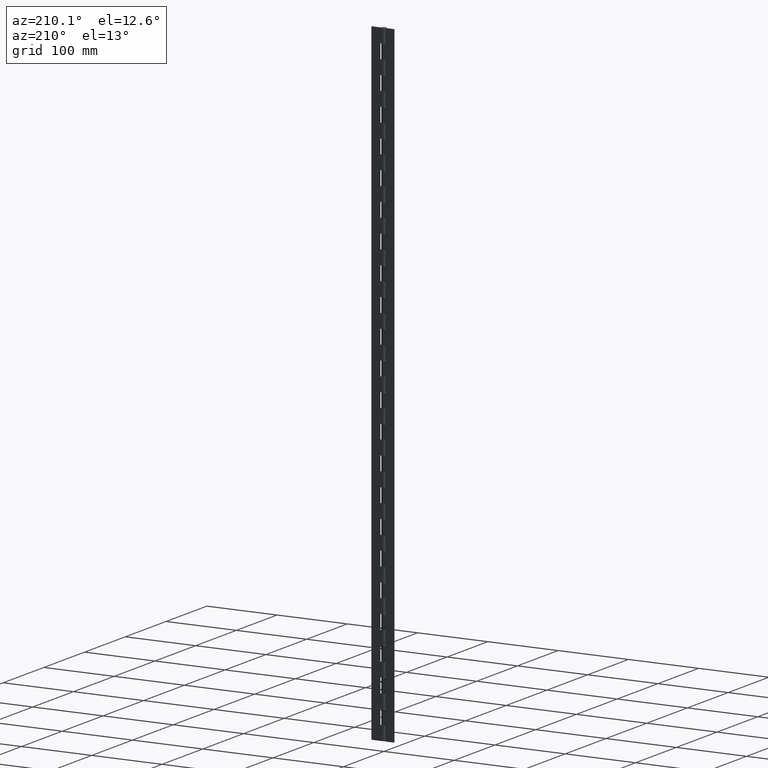
[diagram: clean part render]
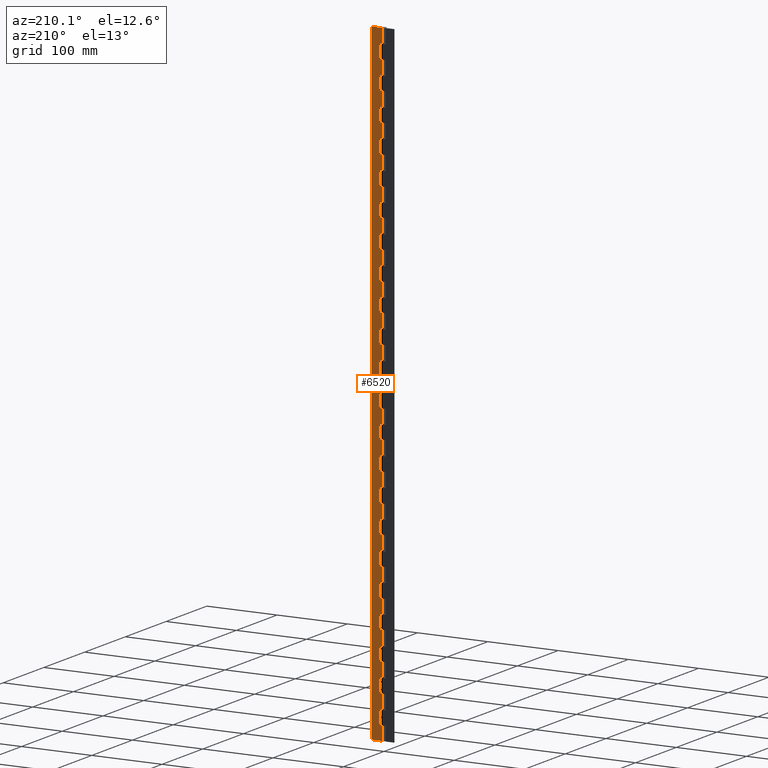
[diagram: same view with one face highlighted and labeled with its STEP entity id]
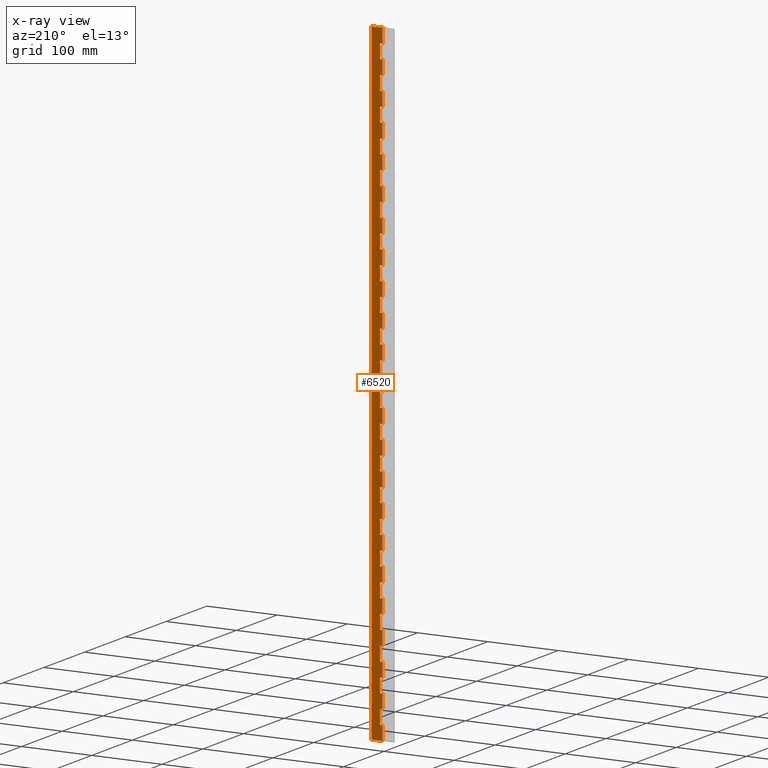
[diagram: x-ray of the same camera — body ghosted, the highlighted face saturated]
A machine part, auxiliary view. The second image highlights one B-rep face of the part: STEP entity #6520.
The next image is the same camera in x-ray: the body ghosted, the highlighted face saturated — about 0% of this face is hidden behind the body in this view.
In plain terms, the highlighted face is a freeform B-spline surface patch.
Its self-contained STEP definition (entity closure, byte-faithful):
#330=CARTESIAN_POINT('',(0.0,3.250000000000000,40.000021999999952));
#331=VERTEX_POINT('',#330);
#351=CARTESIAN_POINT('',(4.0,3.250000000000000,40.000021999999952));
#352=VERTEX_POINT('',#351);
#353=CARTESIAN_POINT('',(4.0,3.250000000000000,40.000021999999952));
#354=CARTESIAN_POINT('',(0.0,3.250000000000000,40.000021999999952));
#355=QUASI_UNIFORM_CURVE('',1,(#353,#354),.UNSPECIFIED.,.F.,.U.);
#356=EDGE_CURVE('',#352,#331,#355,.T.);
#379=CARTESIAN_POINT('',(4.0,3.250000000000000,20.000022000000051));
#380=VERTEX_POINT('',#379);
#381=CARTESIAN_POINT('',(4.0,3.250000000000000,20.000022000000051));
#382=CARTESIAN_POINT('',(4.0,3.250000000000000,40.000021999999952));
#383=QUASI_UNIFORM_CURVE('',1,(#381,#382),.UNSPECIFIED.,.F.,.U.);
#384=EDGE_CURVE('',#380,#352,#383,.T.);
#407=CARTESIAN_POINT('',(0.0,3.250000000000000,20.000022000000051));
#408=VERTEX_POINT('',#407);
#409=CARTESIAN_POINT('',(0.0,3.250000000000000,20.000022000000051));
#410=CARTESIAN_POINT('',(4.0,3.250000000000000,20.000022000000051));
#411=QUASI_UNIFORM_CURVE('',1,(#409,#410),.UNSPECIFIED.,.F.,.U.);
#412=EDGE_CURVE('',#408,#380,#411,.T.);
#506=CARTESIAN_POINT('',(0.0,3.250000000000000,80.000021999999888));
#507=VERTEX_POINT('',#506);
#527=CARTESIAN_POINT('',(4.0,3.250000000000000,80.000021999999888));
#528=VERTEX_POINT('',#527);
#529=CARTESIAN_POINT('',(4.0,3.250000000000000,80.000021999999888));
#530=CARTESIAN_POINT('',(0.0,3.250000000000000,80.000021999999888));
#531=QUASI_UNIFORM_CURVE('',1,(#529,#530),.UNSPECIFIED.,.F.,.U.);
#532=EDGE_CURVE('',#528,#507,#531,.T.);
#555=CARTESIAN_POINT('',(4.0,3.250000000000000,60.000022000000001));
#556=VERTEX_POINT('',#555);
#557=CARTESIAN_POINT('',(4.0,3.250000000000000,60.000022000000001));
#558=CARTESIAN_POINT('',(4.0,3.250000000000000,80.000021999999888));
#559=QUASI_UNIFORM_CURVE('',1,(#557,#558),.UNSPECIFIED.,.F.,.U.);
#560=EDGE_CURVE('',#556,#528,#559,.T.);
#583=CARTESIAN_POINT('',(0.0,3.250000000000000,60.000022000000001));
#584=VERTEX_POINT('',#583);
#585=CARTESIAN_POINT('',(0.0,3.250000000000000,60.000022000000001));
#586=CARTESIAN_POINT('',(4.0,3.250000000000000,60.000022000000001));
#587=QUASI_UNIFORM_CURVE('',1,(#585,#586),.UNSPECIFIED.,.F.,.U.);
#588=EDGE_CURVE('',#584,#556,#587,.T.);
#682=CARTESIAN_POINT('',(0.0,3.250000000000000,120.000022000000000));
#683=VERTEX_POINT('',#682);
#703=CARTESIAN_POINT('',(4.0,3.250000000000000,120.000022000000000));
#704=VERTEX_POINT('',#703);
#705=CARTESIAN_POINT('',(4.0,3.250000000000000,120.000022000000000));
#706=CARTESIAN_POINT('',(0.0,3.250000000000000,120.000022000000000));
#707=QUASI_UNIFORM_CURVE('',1,(#705,#706),.UNSPECIFIED.,.F.,.U.);
#708=EDGE_CURVE('',#704,#683,#707,.T.);
#731=CARTESIAN_POINT('',(4.0,3.250000000000000,100.000022000000000));
#732=VERTEX_POINT('',#731);
#733=CARTESIAN_POINT('',(4.0,3.250000000000000,100.000022000000000));
#734=CARTESIAN_POINT('',(4.0,3.250000000000000,120.000022000000000));
#735=QUASI_UNIFORM_CURVE('',1,(#733,#734),.UNSPECIFIED.,.F.,.U.);
#736=EDGE_CURVE('',#732,#704,#735,.T.);
#759=CARTESIAN_POINT('',(0.0,3.250000000000000,100.000022000000000));
#760=VERTEX_POINT('',#759);
#761=CARTESIAN_POINT('',(0.0,3.250000000000000,100.000022000000000));
#762=CARTESIAN_POINT('',(4.0,3.250000000000000,100.000022000000000));
#763=QUASI_UNIFORM_CURVE('',1,(#761,#762),.UNSPECIFIED.,.F.,.U.);
#764=EDGE_CURVE('',#760,#732,#763,.T.);
#858=CARTESIAN_POINT('',(0.0,3.250000000000000,160.000022000000000));
#859=VERTEX_POINT('',#858);
#879=CARTESIAN_POINT('',(4.0,3.250000000000000,160.000022000000000));
#880=VERTEX_POINT('',#879);
#881=CARTESIAN_POINT('',(4.0,3.250000000000000,160.000022000000000));
#882=CARTESIAN_POINT('',(0.0,3.250000000000000,160.000022000000000));
#883=QUASI_UNIFORM_CURVE('',1,(#881,#882),.UNSPECIFIED.,.F.,.U.);
#884=EDGE_CURVE('',#880,#859,#883,.T.);
#907=CARTESIAN_POINT('',(4.0,3.250000000000000,140.000022000000000));
#908=VERTEX_POINT('',#907);
#909=CARTESIAN_POINT('',(4.0,3.250000000000000,140.000022000000000));
#910=CARTESIAN_POINT('',(4.0,3.250000000000000,160.000022000000000));
#911=QUASI_UNIFORM_CURVE('',1,(#909,#910),.UNSPECIFIED.,.F.,.U.);
#912=EDGE_CURVE('',#908,#880,#911,.T.);
#935=CARTESIAN_POINT('',(0.0,3.250000000000000,140.000022000000000));
#936=VERTEX_POINT('',#935);
#937=CARTESIAN_POINT('',(0.0,3.250000000000000,140.000022000000000));
#938=CARTESIAN_POINT('',(4.0,3.250000000000000,140.000022000000000));
#939=QUASI_UNIFORM_CURVE('',1,(#937,#938),.UNSPECIFIED.,.F.,.U.);
#940=EDGE_CURVE('',#936,#908,#939,.T.);
#1034=CARTESIAN_POINT('',(0.0,3.250000000000000,200.000022000000000));
#1035=VERTEX_POINT('',#1034);
#1055=CARTESIAN_POINT('',(4.0,3.250000000000000,200.000022000000000));
#1056=VERTEX_POINT('',#1055);
#1057=CARTESIAN_POINT('',(4.0,3.250000000000000,200.000022000000000));
#1058=CARTESIAN_POINT('',(0.0,3.250000000000000,200.000022000000000));
#1059=QUASI_UNIFORM_CURVE('',1,(#1057,#1058),.UNSPECIFIED.,.F.,.U.);
#1060=EDGE_CURVE('',#1056,#1035,#1059,.T.);
#1083=CARTESIAN_POINT('',(4.0,3.250000000000000,180.000022000000000));
#1084=VERTEX_POINT('',#1083);
#1085=CARTESIAN_POINT('',(4.0,3.250000000000000,180.000022000000000));
#1086=CARTESIAN_POINT('',(4.0,3.250000000000000,200.000022000000000));
#1087=QUASI_UNIFORM_CURVE('',1,(#1085,#1086),.UNSPECIFIED.,.F.,.U.);
#1088=EDGE_CURVE('',#1084,#1056,#1087,.T.);
#1111=CARTESIAN_POINT('',(0.0,3.250000000000000,180.000022000000000));
#1112=VERTEX_POINT('',#1111);
#1113=CARTESIAN_POINT('',(0.0,3.250000000000000,180.000022000000000));
#1114=CARTESIAN_POINT('',(4.0,3.250000000000000,180.000022000000000));
#1115=QUASI_UNIFORM_CURVE('',1,(#1113,#1114),.UNSPECIFIED.,.F.,.U.);
#1116=EDGE_CURVE('',#1112,#1084,#1115,.T.);
#1210=CARTESIAN_POINT('',(0.0,3.250000000000000,240.000022000000000));
#1211=VERTEX_POINT('',#1210);
#1231=CARTESIAN_POINT('',(4.0,3.250000000000000,240.000022000000000));
#1232=VERTEX_POINT('',#1231);
#1233=CARTESIAN_POINT('',(4.0,3.250000000000000,240.000022000000000));
#1234=CARTESIAN_POINT('',(0.0,3.250000000000000,240.000022000000000));
#1235=QUASI_UNIFORM_CURVE('',1,(#1233,#1234),.UNSPECIFIED.,.F.,.U.);
#1236=EDGE_CURVE('',#1232,#1211,#1235,.T.);
#1259=CARTESIAN_POINT('',(4.0,3.250000000000000,220.000022000000000));
#1260=VERTEX_POINT('',#1259);
#1261=CARTESIAN_POINT('',(4.0,3.250000000000000,220.000022000000000));
#1262=CARTESIAN_POINT('',(4.0,3.250000000000000,240.000022000000000));
#1263=QUASI_UNIFORM_CURVE('',1,(#1261,#1262),.UNSPECIFIED.,.F.,.U.);
#1264=EDGE_CURVE('',#1260,#1232,#1263,.T.);
#1287=CARTESIAN_POINT('',(0.0,3.250000000000000,220.000022000000000));
#1288=VERTEX_POINT('',#1287);
#1289=CARTESIAN_POINT('',(0.0,3.250000000000000,220.000022000000000));
#1290=CARTESIAN_POINT('',(4.0,3.250000000000000,220.000022000000000));
#1291=QUASI_UNIFORM_CURVE('',1,(#1289,#1290),.UNSPECIFIED.,.F.,.U.);
#1292=EDGE_CURVE('',#1288,#1260,#1291,.T.);
#1386=CARTESIAN_POINT('',(0.0,3.250000000000000,280.000022000000000));
#1387=VERTEX_POINT('',#1386);
#1407=CARTESIAN_POINT('',(4.0,3.250000000000000,280.000022000000000));
#1408=VERTEX_POINT('',#1407);
#1409=CARTESIAN_POINT('',(4.0,3.250000000000000,280.000022000000000));
#1410=CARTESIAN_POINT('',(0.0,3.250000000000000,280.000022000000000));
#1411=QUASI_UNIFORM_CURVE('',1,(#1409,#1410),.UNSPECIFIED.,.F.,.U.);
#1412=EDGE_CURVE('',#1408,#1387,#1411,.T.);
#1435=CARTESIAN_POINT('',(4.0,3.250000000000000,260.000022000000000));
#1436=VERTEX_POINT('',#1435);
#1437=CARTESIAN_POINT('',(4.0,3.250000000000000,260.000022000000000));
#1438=CARTESIAN_POINT('',(4.0,3.250000000000000,280.000022000000000));
#1439=QUASI_UNIFORM_CURVE('',1,(#1437,#1438),.UNSPECIFIED.,.F.,.U.);
#1440=EDGE_CURVE('',#1436,#1408,#1439,.T.);
#1463=CARTESIAN_POINT('',(0.0,3.250000000000000,260.000022000000000));
#1464=VERTEX_POINT('',#1463);
#1465=CARTESIAN_POINT('',(0.0,3.250000000000000,260.000022000000000));
#1466=CARTESIAN_POINT('',(4.0,3.250000000000000,260.000022000000000));
#1467=QUASI_UNIFORM_CURVE('',1,(#1465,#1466),.UNSPECIFIED.,.F.,.U.);
#1468=EDGE_CURVE('',#1464,#1436,#1467,.T.);
#1562=CARTESIAN_POINT('',(0.0,3.250000000000000,320.000022000000000));
#1563=VERTEX_POINT('',#1562);
#1583=CARTESIAN_POINT('',(4.0,3.250000000000000,320.000022000000000));
#1584=VERTEX_POINT('',#1583);
#1585=CARTESIAN_POINT('',(4.0,3.250000000000000,320.000022000000000));
#1586=CARTESIAN_POINT('',(0.0,3.250000000000000,320.000022000000000));
#1587=QUASI_UNIFORM_CURVE('',1,(#1585,#1586),.UNSPECIFIED.,.F.,.U.);
#1588=EDGE_CURVE('',#1584,#1563,#1587,.T.);
#1611=CARTESIAN_POINT('',(4.0,3.250000000000000,300.000022000000000));
#1612=VERTEX_POINT('',#1611);
#1613=CARTESIAN_POINT('',(4.0,3.250000000000000,300.000022000000000));
#1614=CARTESIAN_POINT('',(4.0,3.250000000000000,320.000022000000000));
#1615=QUASI_UNIFORM_CURVE('',1,(#1613,#1614),.UNSPECIFIED.,.F.,.U.);
#1616=EDGE_CURVE('',#1612,#1584,#1615,.T.);
#1639=CARTESIAN_POINT('',(0.0,3.250000000000000,300.000022000000000));
#1640=VERTEX_POINT('',#1639);
#1641=CARTESIAN_POINT('',(0.0,3.250000000000000,300.000022000000000));
#1642=CARTESIAN_POINT('',(4.0,3.250000000000000,300.000022000000000));
#1643=QUASI_UNIFORM_CURVE('',1,(#1641,#1642),.UNSPECIFIED.,.F.,.U.);
#1644=EDGE_CURVE('',#1640,#1612,#1643,.T.);
#1738=CARTESIAN_POINT('',(0.0,3.250000000000000,360.000022000000000));
#1739=VERTEX_POINT('',#1738);
#1759=CARTESIAN_POINT('',(4.0,3.250000000000000,360.000022000000000));
#1760=VERTEX_POINT('',#1759);
#1761=CARTESIAN_POINT('',(4.0,3.250000000000000,360.000022000000000));
#1762=CARTESIAN_POINT('',(0.0,3.250000000000000,360.000022000000000));
#1763=QUASI_UNIFORM_CURVE('',1,(#1761,#1762),.UNSPECIFIED.,.F.,.U.);
#1764=EDGE_CURVE('',#1760,#1739,#1763,.T.);
#1787=CARTESIAN_POINT('',(4.0,3.250000000000000,340.000022000000000));
#1788=VERTEX_POINT('',#1787);
#1789=CARTESIAN_POINT('',(4.0,3.250000000000000,340.000022000000000));
#1790=CARTESIAN_POINT('',(4.0,3.250000000000000,360.000022000000000));
#1791=QUASI_UNIFORM_CURVE('',1,(#1789,#1790),.UNSPECIFIED.,.F.,.U.);
#1792=EDGE_CURVE('',#1788,#1760,#1791,.T.);
#1815=CARTESIAN_POINT('',(0.0,3.250000000000000,340.000022000000000));
#1816=VERTEX_POINT('',#1815);
#1817=CARTESIAN_POINT('',(0.0,3.250000000000000,340.000022000000000));
#1818=CARTESIAN_POINT('',(4.0,3.250000000000000,340.000022000000000));
#1819=QUASI_UNIFORM_CURVE('',1,(#1817,#1818),.UNSPECIFIED.,.F.,.U.);
#1820=EDGE_CURVE('',#1816,#1788,#1819,.T.);
#1914=CARTESIAN_POINT('',(0.0,3.250000000000000,400.000022000000000));
#1915=VERTEX_POINT('',#1914);
#1935=CARTESIAN_POINT('',(4.0,3.250000000000000,400.000022000000000));
#1936=VERTEX_POINT('',#1935);
#1937=CARTESIAN_POINT('',(4.0,3.250000000000000,400.000022000000000));
#1938=CARTESIAN_POINT('',(0.0,3.250000000000000,400.000022000000000));
#1939=QUASI_UNIFORM_CURVE('',1,(#1937,#1938),.UNSPECIFIED.,.F.,.U.);
#1940=EDGE_CURVE('',#1936,#1915,#1939,.T.);
#1963=CARTESIAN_POINT('',(4.0,3.250000000000000,380.000022000000000));
#1964=VERTEX_POINT('',#1963);
#1965=CARTESIAN_POINT('',(4.0,3.250000000000000,380.000022000000000));
#1966=CARTESIAN_POINT('',(4.0,3.250000000000000,400.000022000000000));
#1967=QUASI_UNIFORM_CURVE('',1,(#1965,#1966),.UNSPECIFIED.,.F.,.U.);
#1968=EDGE_CURVE('',#1964,#1936,#1967,.T.);
#1991=CARTESIAN_POINT('',(0.0,3.250000000000000,380.000022000000000));
#1992=VERTEX_POINT('',#1991);
#1993=CARTESIAN_POINT('',(0.0,3.250000000000000,380.000022000000000));
#1994=CARTESIAN_POINT('',(4.0,3.250000000000000,380.000022000000000));
#1995=QUASI_UNIFORM_CURVE('',1,(#1993,#1994),.UNSPECIFIED.,.F.,.U.);
#1996=EDGE_CURVE('',#1992,#1964,#1995,.T.);
#2090=CARTESIAN_POINT('',(0.0,3.250000000000000,440.000022000000000));
#2091=VERTEX_POINT('',#2090);
#2111=CARTESIAN_POINT('',(4.0,3.250000000000000,440.000022000000000));
#2112=VERTEX_POINT('',#2111);
#2113=CARTESIAN_POINT('',(4.0,3.250000000000000,440.000022000000000));
#2114=CARTESIAN_POINT('',(0.0,3.250000000000000,440.000022000000000));
#2115=QUASI_UNIFORM_CURVE('',1,(#2113,#2114),.UNSPECIFIED.,.F.,.U.);
#2116=EDGE_CURVE('',#2112,#2091,#2115,.T.);
#2139=CARTESIAN_POINT('',(4.0,3.250000000000000,420.000021999999890));
#2140=VERTEX_POINT('',#2139);
#2141=CARTESIAN_POINT('',(4.0,3.250000000000000,420.000021999999890));
#2142=CARTESIAN_POINT('',(4.0,3.250000000000000,440.000022000000000));
#2143=QUASI_UNIFORM_CURVE('',1,(#2141,#2142),.UNSPECIFIED.,.F.,.U.);
#2144=EDGE_CURVE('',#2140,#2112,#2143,.T.);
#2167=CARTESIAN_POINT('',(0.0,3.250000000000000,420.000021999999890));
#2168=VERTEX_POINT('',#2167);
#2169=CARTESIAN_POINT('',(0.0,3.250000000000000,420.000021999999890));
#2170=CARTESIAN_POINT('',(4.0,3.250000000000000,420.000021999999890));
#2171=QUASI_UNIFORM_CURVE('',1,(#2169,#2170),.UNSPECIFIED.,.F.,.U.);
#2172=EDGE_CURVE('',#2168,#2140,#2171,.T.);
#2266=CARTESIAN_POINT('',(0.0,3.250000000000000,480.000022000000000));
#2267=VERTEX_POINT('',#2266);
#2287=CARTESIAN_POINT('',(4.0,3.250000000000000,480.000022000000000));
#2288=VERTEX_POINT('',#2287);
#2289=CARTESIAN_POINT('',(4.0,3.250000000000000,480.000022000000000));
#2290=CARTESIAN_POINT('',(0.0,3.250000000000000,480.000022000000000));
#2291=QUASI_UNIFORM_CURVE('',1,(#2289,#2290),.UNSPECIFIED.,.F.,.U.);
#2292=EDGE_CURVE('',#2288,#2267,#2291,.T.);
#2315=CARTESIAN_POINT('',(4.0,3.250000000000000,460.000022000000000));
#2316=VERTEX_POINT('',#2315);
#2317=CARTESIAN_POINT('',(4.0,3.250000000000000,460.000022000000000));
#2318=CARTESIAN_POINT('',(4.0,3.250000000000000,480.000022000000000));
#2319=QUASI_UNIFORM_CURVE('',1,(#2317,#2318),.UNSPECIFIED.,.F.,.U.);
#2320=EDGE_CURVE('',#2316,#2288,#2319,.T.);
#2343=CARTESIAN_POINT('',(0.0,3.250000000000000,460.000022000000000));
#2344=VERTEX_POINT('',#2343);
#2345=CARTESIAN_POINT('',(0.0,3.250000000000000,460.000022000000000));
#2346=CARTESIAN_POINT('',(4.0,3.250000000000000,460.000022000000000));
#2347=QUASI_UNIFORM_CURVE('',1,(#2345,#2346),.UNSPECIFIED.,.F.,.U.);
#2348=EDGE_CURVE('',#2344,#2316,#2347,.T.);
#2442=CARTESIAN_POINT('',(0.0,3.250000000000000,520.000021999999940));
#2443=VERTEX_POINT('',#2442);
#2463=CARTESIAN_POINT('',(4.0,3.250000000000000,520.000021999999940));
#2464=VERTEX_POINT('',#2463);
#2465=CARTESIAN_POINT('',(4.0,3.250000000000000,520.000021999999940));
#2466=CARTESIAN_POINT('',(0.0,3.250000000000000,520.000021999999940));
#2467=QUASI_UNIFORM_CURVE('',1,(#2465,#2466),.UNSPECIFIED.,.F.,.U.);
#2468=EDGE_CURVE('',#2464,#2443,#2467,.T.);
#2491=CARTESIAN_POINT('',(4.0,3.250000000000000,500.000022000000110));
#2492=VERTEX_POINT('',#2491);
#2493=CARTESIAN_POINT('',(4.0,3.250000000000000,500.000022000000110));
#2494=CARTESIAN_POINT('',(4.0,3.250000000000000,520.000021999999940));
#2495=QUASI_UNIFORM_CURVE('',1,(#2493,#2494),.UNSPECIFIED.,.F.,.U.);
#2496=EDGE_CURVE('',#2492,#2464,#2495,.T.);
#2519=CARTESIAN_POINT('',(0.0,3.250000000000000,500.000022000000110));
#2520=VERTEX_POINT('',#2519);
#2521=CARTESIAN_POINT('',(0.0,3.250000000000000,500.000022000000110));
#2522=CARTESIAN_POINT('',(4.0,3.250000000000000,500.000022000000110));
#2523=QUASI_UNIFORM_CURVE('',1,(#2521,#2522),.UNSPECIFIED.,.F.,.U.);
#2524=EDGE_CURVE('',#2520,#2492,#2523,.T.);
#2618=CARTESIAN_POINT('',(0.0,3.250000000000000,560.000021999999940));
#2619=VERTEX_POINT('',#2618);
#2639=CARTESIAN_POINT('',(4.0,3.250000000000000,560.000021999999940));
#2640=VERTEX_POINT('',#2639);
#2641=CARTESIAN_POINT('',(4.0,3.250000000000000,560.000021999999940));
#2642=CARTESIAN_POINT('',(0.0,3.250000000000000,560.000021999999940));
#2643=QUASI_UNIFORM_CURVE('',1,(#2641,#2642),.UNSPECIFIED.,.F.,.U.);
#2644=EDGE_CURVE('',#2640,#2619,#2643,.T.);
#2667=CARTESIAN_POINT('',(4.0,3.250000000000000,540.000021999999940));
#2668=VERTEX_POINT('',#2667);
#2669=CARTESIAN_POINT('',(4.0,3.250000000000000,540.000021999999940));
#2670=CARTESIAN_POINT('',(4.0,3.250000000000000,560.000021999999940));
#2671=QUASI_UNIFORM_CURVE('',1,(#2669,#2670),.UNSPECIFIED.,.F.,.U.);
#2672=EDGE_CURVE('',#2668,#2640,#2671,.T.);
#2695=CARTESIAN_POINT('',(0.0,3.250000000000000,540.000021999999940));
#2696=VERTEX_POINT('',#2695);
#2697=CARTESIAN_POINT('',(0.0,3.250000000000000,540.000021999999940));
#2698=CARTESIAN_POINT('',(4.0,3.250000000000000,540.000021999999940));
#2699=QUASI_UNIFORM_CURVE('',1,(#2697,#2698),.UNSPECIFIED.,.F.,.U.);
#2700=EDGE_CURVE('',#2696,#2668,#2699,.T.);
#2794=CARTESIAN_POINT('',(0.0,3.250000000000000,600.000022000000060));
#2795=VERTEX_POINT('',#2794);
#2815=CARTESIAN_POINT('',(4.0,3.250000000000000,600.000022000000060));
#2816=VERTEX_POINT('',#2815);
#2817=CARTESIAN_POINT('',(4.0,3.250000000000000,600.000022000000060));
#2818=CARTESIAN_POINT('',(0.0,3.250000000000000,600.000022000000060));
#2819=QUASI_UNIFORM_CURVE('',1,(#2817,#2818),.UNSPECIFIED.,.F.,.U.);
#2820=EDGE_CURVE('',#2816,#2795,#2819,.T.);
#2843=CARTESIAN_POINT('',(4.0,3.250000000000000,580.000022000000060));
#2844=VERTEX_POINT('',#2843);
#2845=CARTESIAN_POINT('',(4.0,3.250000000000000,580.000022000000060));
#2846=CARTESIAN_POINT('',(4.0,3.250000000000000,600.000022000000060));
#2847=QUASI_UNIFORM_CURVE('',1,(#2845,#2846),.UNSPECIFIED.,.F.,.U.);
#2848=EDGE_CURVE('',#2844,#2816,#2847,.T.);
#2871=CARTESIAN_POINT('',(0.0,3.250000000000000,580.000022000000060));
#2872=VERTEX_POINT('',#2871);
#2873=CARTESIAN_POINT('',(0.0,3.250000000000000,580.000022000000060));
#2874=CARTESIAN_POINT('',(4.0,3.250000000000000,580.000022000000060));
#2875=QUASI_UNIFORM_CURVE('',1,(#2873,#2874),.UNSPECIFIED.,.F.,.U.);
#2876=EDGE_CURVE('',#2872,#2844,#2875,.T.);
#2970=CARTESIAN_POINT('',(0.0,3.250000000000000,640.000021999999940));
#2971=VERTEX_POINT('',#2970);
#2991=CARTESIAN_POINT('',(4.0,3.250000000000000,640.000021999999940));
#2992=VERTEX_POINT('',#2991);
#2993=CARTESIAN_POINT('',(4.0,3.250000000000000,640.000021999999940));
#2994=CARTESIAN_POINT('',(0.0,3.250000000000000,640.000021999999940));
#2995=QUASI_UNIFORM_CURVE('',1,(#2993,#2994),.UNSPECIFIED.,.F.,.U.);
#2996=EDGE_CURVE('',#2992,#2971,#2995,.T.);
#3019=CARTESIAN_POINT('',(4.0,3.250000000000000,620.000022000000060));
#3020=VERTEX_POINT('',#3019);
#3021=CARTESIAN_POINT('',(4.0,3.250000000000000,620.000022000000060));
#3022=CARTESIAN_POINT('',(4.0,3.250000000000000,640.000021999999940));
#3023=QUASI_UNIFORM_CURVE('',1,(#3021,#3022),.UNSPECIFIED.,.F.,.U.);
#3024=EDGE_CURVE('',#3020,#2992,#3023,.T.);
#3047=CARTESIAN_POINT('',(0.0,3.250000000000000,620.000022000000060));
#3048=VERTEX_POINT('',#3047);
#3049=CARTESIAN_POINT('',(0.0,3.250000000000000,620.000022000000060));
#3050=CARTESIAN_POINT('',(4.0,3.250000000000000,620.000022000000060));
#3051=QUASI_UNIFORM_CURVE('',1,(#3049,#3050),.UNSPECIFIED.,.F.,.U.);
#3052=EDGE_CURVE('',#3048,#3020,#3051,.T.);
#3146=CARTESIAN_POINT('',(0.0,3.250000000000000,680.000021999999940));
#3147=VERTEX_POINT('',#3146);
#3167=CARTESIAN_POINT('',(4.0,3.250000000000000,680.000021999999940));
#3168=VERTEX_POINT('',#3167);
#3169=CARTESIAN_POINT('',(4.0,3.250000000000000,680.000021999999940));
#3170=CARTESIAN_POINT('',(0.0,3.250000000000000,680.000021999999940));
#3171=QUASI_UNIFORM_CURVE('',1,(#3169,#3170),.UNSPECIFIED.,.F.,.U.);
#3172=EDGE_CURVE('',#3168,#3147,#3171,.T.);
#3195=CARTESIAN_POINT('',(4.0,3.250000000000000,660.000021999999940));
#3196=VERTEX_POINT('',#3195);
#3197=CARTESIAN_POINT('',(4.0,3.250000000000000,660.000021999999940));
#3198=CARTESIAN_POINT('',(4.0,3.250000000000000,680.000021999999940));
#3199=QUASI_UNIFORM_CURVE('',1,(#3197,#3198),.UNSPECIFIED.,.F.,.U.);
#3200=EDGE_CURVE('',#3196,#3168,#3199,.T.);
#3223=CARTESIAN_POINT('',(0.0,3.250000000000000,660.000021999999940));
#3224=VERTEX_POINT('',#3223);
#3225=CARTESIAN_POINT('',(0.0,3.250000000000000,660.000021999999940));
#3226=CARTESIAN_POINT('',(4.0,3.250000000000000,660.000021999999940));
#3227=QUASI_UNIFORM_CURVE('',1,(#3225,#3226),.UNSPECIFIED.,.F.,.U.);
#3228=EDGE_CURVE('',#3224,#3196,#3227,.T.);
#3322=CARTESIAN_POINT('',(0.0,3.250000000000000,720.000022000000060));
#3323=VERTEX_POINT('',#3322);
#3343=CARTESIAN_POINT('',(4.0,3.250000000000000,720.000022000000060));
#3344=VERTEX_POINT('',#3343);
#3345=CARTESIAN_POINT('',(4.0,3.250000000000000,720.000022000000060));
#3346=CARTESIAN_POINT('',(0.0,3.250000000000000,720.000022000000060));
#3347=QUASI_UNIFORM_CURVE('',1,(#3345,#3346),.UNSPECIFIED.,.F.,.U.);
#3348=EDGE_CURVE('',#3344,#3323,#3347,.T.);
#3371=CARTESIAN_POINT('',(4.0,3.250000000000000,700.000021999999940));
#3372=VERTEX_POINT('',#3371);
#3373=CARTESIAN_POINT('',(4.0,3.250000000000000,700.000021999999940));
#3374=CARTESIAN_POINT('',(4.0,3.250000000000000,720.000022000000060));
#3375=QUASI_UNIFORM_CURVE('',1,(#3373,#3374),.UNSPECIFIED.,.F.,.U.);
#3376=EDGE_CURVE('',#3372,#3344,#3375,.T.);
#3399=CARTESIAN_POINT('',(0.0,3.250000000000000,700.000021999999940));
#3400=VERTEX_POINT('',#3399);
#3401=CARTESIAN_POINT('',(0.0,3.250000000000000,700.000021999999940));
#3402=CARTESIAN_POINT('',(4.0,3.250000000000000,700.000021999999940));
#3403=QUASI_UNIFORM_CURVE('',1,(#3401,#3402),.UNSPECIFIED.,.F.,.U.);
#3404=EDGE_CURVE('',#3400,#3372,#3403,.T.);
#3498=CARTESIAN_POINT('',(0.0,3.250000000000000,760.000022000000060));
#3499=VERTEX_POINT('',#3498);
#3519=CARTESIAN_POINT('',(4.0,3.250000000000000,760.000022000000060));
#3520=VERTEX_POINT('',#3519);
#3521=CARTESIAN_POINT('',(4.0,3.250000000000000,760.000022000000060));
#3522=CARTESIAN_POINT('',(0.0,3.250000000000000,760.000022000000060));
#3523=QUASI_UNIFORM_CURVE('',1,(#3521,#3522),.UNSPECIFIED.,.F.,.U.);
#3524=EDGE_CURVE('',#3520,#3499,#3523,.T.);
#3547=CARTESIAN_POINT('',(4.0,3.250000000000000,740.000022000000060));
#3548=VERTEX_POINT('',#3547);
#3549=CARTESIAN_POINT('',(4.0,3.250000000000000,740.000022000000060));
#3550=CARTESIAN_POINT('',(4.0,3.250000000000000,760.000022000000060));
#3551=QUASI_UNIFORM_CURVE('',1,(#3549,#3550),.UNSPECIFIED.,.F.,.U.);
#3552=EDGE_CURVE('',#3548,#3520,#3551,.T.);
#3575=CARTESIAN_POINT('',(0.0,3.250000000000000,740.000022000000060));
#3576=VERTEX_POINT('',#3575);
#3577=CARTESIAN_POINT('',(0.0,3.250000000000000,740.000022000000060));
#3578=CARTESIAN_POINT('',(4.0,3.250000000000000,740.000022000000060));
#3579=QUASI_UNIFORM_CURVE('',1,(#3577,#3578),.UNSPECIFIED.,.F.,.U.);
#3580=EDGE_CURVE('',#3576,#3548,#3579,.T.);
#3674=CARTESIAN_POINT('',(0.0,3.250000000000000,800.000021999999940));
#3675=VERTEX_POINT('',#3674);
#3695=CARTESIAN_POINT('',(4.0,3.250000000000000,800.000021999999940));
#3696=VERTEX_POINT('',#3695);
#3697=CARTESIAN_POINT('',(4.0,3.250000000000000,800.000021999999940));
#3698=CARTESIAN_POINT('',(0.0,3.250000000000000,800.000021999999940));
#3699=QUASI_UNIFORM_CURVE('',1,(#3697,#3698),.UNSPECIFIED.,.F.,.U.);
#3700=EDGE_CURVE('',#3696,#3675,#3699,.T.);
#3723=CARTESIAN_POINT('',(4.0,3.250000000000000,780.000021999999940));
#3724=VERTEX_POINT('',#3723);
#3725=CARTESIAN_POINT('',(4.0,3.250000000000000,780.000021999999940));
#3726=CARTESIAN_POINT('',(4.0,3.250000000000000,800.000021999999940));
#3727=QUASI_UNIFORM_CURVE('',1,(#3725,#3726),.UNSPECIFIED.,.F.,.U.);
#3728=EDGE_CURVE('',#3724,#3696,#3727,.T.);
#3751=CARTESIAN_POINT('',(0.0,3.250000000000000,780.000021999999940));
#3752=VERTEX_POINT('',#3751);
#3753=CARTESIAN_POINT('',(0.0,3.250000000000000,780.000021999999940));
#3754=CARTESIAN_POINT('',(4.0,3.250000000000000,780.000021999999940));
#3755=QUASI_UNIFORM_CURVE('',1,(#3753,#3754),.UNSPECIFIED.,.F.,.U.);
#3756=EDGE_CURVE('',#3752,#3724,#3755,.T.);
#3850=CARTESIAN_POINT('',(0.0,3.250000000000000,840.000022000000060));
#3851=VERTEX_POINT('',#3850);
#3871=CARTESIAN_POINT('',(4.0,3.250000000000000,840.000022000000060));
#3872=VERTEX_POINT('',#3871);
#3873=CARTESIAN_POINT('',(4.0,3.250000000000000,840.000022000000060));
#3874=CARTESIAN_POINT('',(0.0,3.250000000000000,840.000022000000060));
#3875=QUASI_UNIFORM_CURVE('',1,(#3873,#3874),.UNSPECIFIED.,.F.,.U.);
#3876=EDGE_CURVE('',#3872,#3851,#3875,.T.);
#3899=CARTESIAN_POINT('',(4.0,3.250000000000000,820.000021999999940));
#3900=VERTEX_POINT('',#3899);
#3901=CARTESIAN_POINT('',(4.0,3.250000000000000,820.000021999999940));
#3902=CARTESIAN_POINT('',(4.0,3.250000000000000,840.000022000000060));
#3903=QUASI_UNIFORM_CURVE('',1,(#3901,#3902),.UNSPECIFIED.,.F.,.U.);
#3904=EDGE_CURVE('',#3900,#3872,#3903,.T.);
#3927=CARTESIAN_POINT('',(0.0,3.250000000000000,820.000021999999940));
#3928=VERTEX_POINT('',#3927);
#3929=CARTESIAN_POINT('',(0.0,3.250000000000000,820.000021999999940));
#3930=CARTESIAN_POINT('',(4.0,3.250000000000000,820.000021999999940));
#3931=QUASI_UNIFORM_CURVE('',1,(#3929,#3930),.UNSPECIFIED.,.F.,.U.);
#3932=EDGE_CURVE('',#3928,#3900,#3931,.T.);
#4026=CARTESIAN_POINT('',(0.0,3.250000000000000,880.000022000000060));
#4027=VERTEX_POINT('',#4026);
#4047=CARTESIAN_POINT('',(4.0,3.250000000000000,880.000022000000060));
#4048=VERTEX_POINT('',#4047);
#4049=CARTESIAN_POINT('',(4.0,3.250000000000000,880.000022000000060));
#4050=CARTESIAN_POINT('',(0.0,3.250000000000000,880.000022000000060));
#4051=QUASI_UNIFORM_CURVE('',1,(#4049,#4050),.UNSPECIFIED.,.F.,.U.);
#4052=EDGE_CURVE('',#4048,#4027,#4051,.T.);
#4075=CARTESIAN_POINT('',(4.0,3.250000000000000,860.000022000000060));
#4076=VERTEX_POINT('',#4075);
#4077=CARTESIAN_POINT('',(4.0,3.250000000000000,860.000022000000060));
#4078=CARTESIAN_POINT('',(4.0,3.250000000000000,880.000022000000060));
#4079=QUASI_UNIFORM_CURVE('',1,(#4077,#4078),.UNSPECIFIED.,.F.,.U.);
#4080=EDGE_CURVE('',#4076,#4048,#4079,.T.);
#4103=CARTESIAN_POINT('',(0.0,3.250000000000000,860.000022000000060));
#4104=VERTEX_POINT('',#4103);
#4105=CARTESIAN_POINT('',(0.0,3.250000000000000,860.000022000000060));
#4106=CARTESIAN_POINT('',(4.0,3.250000000000000,860.000022000000060));
#4107=QUASI_UNIFORM_CURVE('',1,(#4105,#4106),.UNSPECIFIED.,.F.,.U.);
#4108=EDGE_CURVE('',#4104,#4076,#4107,.T.);
#4172=CARTESIAN_POINT('',(-5.969956E-016,3.250000000000000,0.0));
#4173=VERTEX_POINT('',#4172);
#4174=CARTESIAN_POINT('',(16.0,3.250000000000000,0.0));
#4175=VERTEX_POINT('',#4174);
#4176=CARTESIAN_POINT('',(-5.969956E-016,3.250000000000000,0.0));
#4177=CARTESIAN_POINT('',(16.0,3.250000000000000,0.0));
#4178=QUASI_UNIFORM_CURVE('',1,(#4176,#4177),.UNSPECIFIED.,.F.,.U.);
#4179=EDGE_CURVE('',#4173,#4175,#4178,.T.);
#4250=CARTESIAN_POINT('',(-5.969956E-016,3.250000000000000,900.000021999999940));
#4251=VERTEX_POINT('',#4250);
#4252=CARTESIAN_POINT('',(16.0,3.250000000000000,900.000021999999940));
#4253=VERTEX_POINT('',#4252);
#4254=CARTESIAN_POINT('',(-5.969956E-016,3.250000000000000,900.000021999999940));
#4255=CARTESIAN_POINT('',(16.0,3.250000000000000,900.000021999999940));
#4256=QUASI_UNIFORM_CURVE('',1,(#4254,#4255),.UNSPECIFIED.,.F.,.U.);
#4257=EDGE_CURVE('',#4251,#4253,#4256,.T.);
#4329=CARTESIAN_POINT('',(16.0,3.250000000000000,900.000021999999940));
#4330=CARTESIAN_POINT('',(16.0,3.250000000000000,0.0));
#4331=QUASI_UNIFORM_CURVE('',1,(#4329,#4330),.UNSPECIFIED.,.F.,.U.);
#4332=EDGE_CURVE('',#4253,#4175,#4331,.T.);
#4372=CARTESIAN_POINT('',(-5.969956E-016,3.250000000000000,900.000021999999940));
#4373=CARTESIAN_POINT('',(0.0,3.250000000000000,880.000022000000060));
#4374=QUASI_UNIFORM_CURVE('',1,(#4372,#4373),.UNSPECIFIED.,.F.,.U.);
#4375=EDGE_CURVE('',#4251,#4027,#4374,.T.);
#4458=CARTESIAN_POINT('',(0.0,3.250000000000000,860.000022000000060));
#4459=CARTESIAN_POINT('',(0.0,3.250000000000000,840.000022000000060));
#4460=QUASI_UNIFORM_CURVE('',1,(#4458,#4459),.UNSPECIFIED.,.F.,.U.);
#4461=EDGE_CURVE('',#4104,#3851,#4460,.T.);
#4544=CARTESIAN_POINT('',(0.0,3.250000000000000,820.000021999999940));
#4545=CARTESIAN_POINT('',(0.0,3.250000000000000,800.000021999999940));
#4546=QUASI_UNIFORM_CURVE('',1,(#4544,#4545),.UNSPECIFIED.,.F.,.U.);
#4547=EDGE_CURVE('',#3928,#3675,#4546,.T.);
#4630=CARTESIAN_POINT('',(0.0,3.250000000000000,780.000021999999940));
#4631=CARTESIAN_POINT('',(0.0,3.250000000000000,760.000022000000060));
#4632=QUASI_UNIFORM_CURVE('',1,(#4630,#4631),.UNSPECIFIED.,.F.,.U.);
#4633=EDGE_CURVE('',#3752,#3499,#4632,.T.);
#4716=CARTESIAN_POINT('',(0.0,3.250000000000000,740.000022000000060));
#4717=CARTESIAN_POINT('',(0.0,3.250000000000000,720.000022000000060));
#4718=QUASI_UNIFORM_CURVE('',1,(#4716,#4717),.UNSPECIFIED.,.F.,.U.);
#4719=EDGE_CURVE('',#3576,#3323,#4718,.T.);
#4802=CARTESIAN_POINT('',(0.0,3.250000000000000,700.000021999999940));
#4803=CARTESIAN_POINT('',(0.0,3.250000000000000,680.000021999999940));
#4804=QUASI_UNIFORM_CURVE('',1,(#4802,#4803),.UNSPECIFIED.,.F.,.U.);
#4805=EDGE_CURVE('',#3400,#3147,#4804,.T.);
#4888=CARTESIAN_POINT('',(0.0,3.250000000000000,660.000021999999940));
#4889=CARTESIAN_POINT('',(0.0,3.250000000000000,640.000021999999940));
#4890=QUASI_UNIFORM_CURVE('',1,(#4888,#4889),.UNSPECIFIED.,.F.,.U.);
#4891=EDGE_CURVE('',#3224,#2971,#4890,.T.);
#4974=CARTESIAN_POINT('',(0.0,3.250000000000000,620.000022000000060));
#4975=CARTESIAN_POINT('',(0.0,3.250000000000000,600.000022000000060));
#4976=QUASI_UNIFORM_CURVE('',1,(#4974,#4975),.UNSPECIFIED.,.F.,.U.);
#4977=EDGE_CURVE('',#3048,#2795,#4976,.T.);
#5060=CARTESIAN_POINT('',(0.0,3.250000000000000,580.000022000000060));
#5061=CARTESIAN_POINT('',(0.0,3.250000000000000,560.000021999999940));
#5062=QUASI_UNIFORM_CURVE('',1,(#5060,#5061),.UNSPECIFIED.,.F.,.U.);
#5063=EDGE_CURVE('',#2872,#2619,#5062,.T.);
#5146=CARTESIAN_POINT('',(0.0,3.250000000000000,540.000021999999940));
#5147=CARTESIAN_POINT('',(0.0,3.250000000000000,520.000021999999940));
#5148=QUASI_UNIFORM_CURVE('',1,(#5146,#5147),.UNSPECIFIED.,.F.,.U.);
#5149=EDGE_CURVE('',#2696,#2443,#5148,.T.);
#5232=CARTESIAN_POINT('',(0.0,3.250000000000000,500.000022000000110));
#5233=CARTESIAN_POINT('',(0.0,3.250000000000000,480.000022000000000));
#5234=QUASI_UNIFORM_CURVE('',1,(#5232,#5233),.UNSPECIFIED.,.F.,.U.);
#5235=EDGE_CURVE('',#2520,#2267,#5234,.T.);
#5318=CARTESIAN_POINT('',(0.0,3.250000000000000,460.000022000000000));
#5319=CARTESIAN_POINT('',(0.0,3.250000000000000,440.000022000000000));
#5320=QUASI_UNIFORM_CURVE('',1,(#5318,#5319),.UNSPECIFIED.,.F.,.U.);
#5321=EDGE_CURVE('',#2344,#2091,#5320,.T.);
#5404=CARTESIAN_POINT('',(0.0,3.250000000000000,420.000021999999890));
#5405=CARTESIAN_POINT('',(0.0,3.250000000000000,400.000022000000000));
#5406=QUASI_UNIFORM_CURVE('',1,(#5404,#5405),.UNSPECIFIED.,.F.,.U.);
#5407=EDGE_CURVE('',#2168,#1915,#5406,.T.);
#5490=CARTESIAN_POINT('',(0.0,3.250000000000000,380.000022000000000));
#5491=CARTESIAN_POINT('',(0.0,3.250000000000000,360.000022000000000));
#5492=QUASI_UNIFORM_CURVE('',1,(#5490,#5491),.UNSPECIFIED.,.F.,.U.);
#5493=EDGE_CURVE('',#1992,#1739,#5492,.T.);
#5576=CARTESIAN_POINT('',(0.0,3.250000000000000,340.000022000000000));
#5577=CARTESIAN_POINT('',(0.0,3.250000000000000,320.000022000000000));
#5578=QUASI_UNIFORM_CURVE('',1,(#5576,#5577),.UNSPECIFIED.,.F.,.U.);
#5579=EDGE_CURVE('',#1816,#1563,#5578,.T.);
#5662=CARTESIAN_POINT('',(0.0,3.250000000000000,300.000022000000000));
#5663=CARTESIAN_POINT('',(0.0,3.250000000000000,280.000022000000000));
#5664=QUASI_UNIFORM_CURVE('',1,(#5662,#5663),.UNSPECIFIED.,.F.,.U.);
#5665=EDGE_CURVE('',#1640,#1387,#5664,.T.);
#5748=CARTESIAN_POINT('',(0.0,3.250000000000000,260.000022000000000));
#5749=CARTESIAN_POINT('',(0.0,3.250000000000000,240.000022000000000));
#5750=QUASI_UNIFORM_CURVE('',1,(#5748,#5749),.UNSPECIFIED.,.F.,.U.);
#5751=EDGE_CURVE('',#1464,#1211,#5750,.T.);
#5834=CARTESIAN_POINT('',(0.0,3.250000000000000,220.000022000000000));
#5835=CARTESIAN_POINT('',(0.0,3.250000000000000,200.000022000000000));
#5836=QUASI_UNIFORM_CURVE('',1,(#5834,#5835),.UNSPECIFIED.,.F.,.U.);
#5837=EDGE_CURVE('',#1288,#1035,#5836,.T.);
#5920=CARTESIAN_POINT('',(0.0,3.250000000000000,180.000022000000000));
#5921=CARTESIAN_POINT('',(0.0,3.250000000000000,160.000022000000000));
#5922=QUASI_UNIFORM_CURVE('',1,(#5920,#5921),.UNSPECIFIED.,.F.,.U.);
#5923=EDGE_CURVE('',#1112,#859,#5922,.T.);
#6006=CARTESIAN_POINT('',(0.0,3.250000000000000,140.000022000000000));
#6007=CARTESIAN_POINT('',(0.0,3.250000000000000,120.000022000000000));
#6008=QUASI_UNIFORM_CURVE('',1,(#6006,#6007),.UNSPECIFIED.,.F.,.U.);
#6009=EDGE_CURVE('',#936,#683,#6008,.T.);
#6092=CARTESIAN_POINT('',(0.0,3.250000000000000,100.000022000000000));
#6093=CARTESIAN_POINT('',(0.0,3.250000000000000,80.000021999999888));
#6094=QUASI_UNIFORM_CURVE('',1,(#6092,#6093),.UNSPECIFIED.,.F.,.U.);
#6095=EDGE_CURVE('',#760,#507,#6094,.T.);
#6178=CARTESIAN_POINT('',(0.0,3.250000000000000,60.000022000000001));
#6179=CARTESIAN_POINT('',(0.0,3.250000000000000,40.000021999999952));
#6180=QUASI_UNIFORM_CURVE('',1,(#6178,#6179),.UNSPECIFIED.,.F.,.U.);
#6181=EDGE_CURVE('',#584,#331,#6180,.T.);
#6209=CARTESIAN_POINT('',(0.0,3.250000000000000,20.000022000000051));
#6210=CARTESIAN_POINT('',(-5.969956E-016,3.250000000000000,0.0));
#6211=QUASI_UNIFORM_CURVE('',1,(#6209,#6210),.UNSPECIFIED.,.F.,.U.);
#6212=EDGE_CURVE('',#408,#4173,#6211,.T.);
#6421=CARTESIAN_POINT('',(-0.799199968988895,3.250000000000000,-44.954996139093033));
#6422=CARTESIAN_POINT('',(-0.799199968988895,3.250000000000000,944.954977905956870));
#6423=CARTESIAN_POINT('',(16.799200398142339,3.250000000000000,-44.954996139093033));
#6424=CARTESIAN_POINT('',(16.799200398142339,3.250000000000000,944.954977905956870));
#6425=B_SPLINE_SURFACE_WITH_KNOTS('',1,1,((#6421,#6423),(#6422,#6424)),.UNSPECIFIED.,.F.,.F.,.U.,(2,2),(2,2),(0.0,989.909974045050030),(0.0,17.598400367131230),.UNSPECIFIED.);
#6426=ORIENTED_EDGE('',*,*,#6212,.F.);
#6427=ORIENTED_EDGE('',*,*,#412,.T.);
#6428=ORIENTED_EDGE('',*,*,#384,.T.);
#6429=ORIENTED_EDGE('',*,*,#356,.T.);
#6430=ORIENTED_EDGE('',*,*,#6181,.F.);
#6431=ORIENTED_EDGE('',*,*,#588,.T.);
#6432=ORIENTED_EDGE('',*,*,#560,.T.);
#6433=ORIENTED_EDGE('',*,*,#532,.T.);
#6434=ORIENTED_EDGE('',*,*,#6095,.F.);
#6435=ORIENTED_EDGE('',*,*,#764,.T.);
#6436=ORIENTED_EDGE('',*,*,#736,.T.);
#6437=ORIENTED_EDGE('',*,*,#708,.T.);
#6438=ORIENTED_EDGE('',*,*,#6009,.F.);
#6439=ORIENTED_EDGE('',*,*,#940,.T.);
#6440=ORIENTED_EDGE('',*,*,#912,.T.);
#6441=ORIENTED_EDGE('',*,*,#884,.T.);
#6442=ORIENTED_EDGE('',*,*,#5923,.F.);
#6443=ORIENTED_EDGE('',*,*,#1116,.T.);
#6444=ORIENTED_EDGE('',*,*,#1088,.T.);
#6445=ORIENTED_EDGE('',*,*,#1060,.T.);
#6446=ORIENTED_EDGE('',*,*,#5837,.F.);
#6447=ORIENTED_EDGE('',*,*,#1292,.T.);
#6448=ORIENTED_EDGE('',*,*,#1264,.T.);
#6449=ORIENTED_EDGE('',*,*,#1236,.T.);
#6450=ORIENTED_EDGE('',*,*,#5751,.F.);
#6451=ORIENTED_EDGE('',*,*,#1468,.T.);
#6452=ORIENTED_EDGE('',*,*,#1440,.T.);
#6453=ORIENTED_EDGE('',*,*,#1412,.T.);
#6454=ORIENTED_EDGE('',*,*,#5665,.F.);
#6455=ORIENTED_EDGE('',*,*,#1644,.T.);
#6456=ORIENTED_EDGE('',*,*,#1616,.T.);
#6457=ORIENTED_EDGE('',*,*,#1588,.T.);
#6458=ORIENTED_EDGE('',*,*,#5579,.F.);
#6459=ORIENTED_EDGE('',*,*,#1820,.T.);
#6460=ORIENTED_EDGE('',*,*,#1792,.T.);
#6461=ORIENTED_EDGE('',*,*,#1764,.T.);
#6462=ORIENTED_EDGE('',*,*,#5493,.F.);
#6463=ORIENTED_EDGE('',*,*,#1996,.T.);
#6464=ORIENTED_EDGE('',*,*,#1968,.T.);
#6465=ORIENTED_EDGE('',*,*,#1940,.T.);
#6466=ORIENTED_EDGE('',*,*,#5407,.F.);
#6467=ORIENTED_EDGE('',*,*,#2172,.T.);
#6468=ORIENTED_EDGE('',*,*,#2144,.T.);
#6469=ORIENTED_EDGE('',*,*,#2116,.T.);
#6470=ORIENTED_EDGE('',*,*,#5321,.F.);
#6471=ORIENTED_EDGE('',*,*,#2348,.T.);
#6472=ORIENTED_EDGE('',*,*,#2320,.T.);
#6473=ORIENTED_EDGE('',*,*,#2292,.T.);
#6474=ORIENTED_EDGE('',*,*,#5235,.F.);
#6475=ORIENTED_EDGE('',*,*,#2524,.T.);
#6476=ORIENTED_EDGE('',*,*,#2496,.T.);
#6477=ORIENTED_EDGE('',*,*,#2468,.T.);
#6478=ORIENTED_EDGE('',*,*,#5149,.F.);
#6479=ORIENTED_EDGE('',*,*,#2700,.T.);
#6480=ORIENTED_EDGE('',*,*,#2672,.T.);
#6481=ORIENTED_EDGE('',*,*,#2644,.T.);
#6482=ORIENTED_EDGE('',*,*,#5063,.F.);
#6483=ORIENTED_EDGE('',*,*,#2876,.T.);
#6484=ORIENTED_EDGE('',*,*,#2848,.T.);
#6485=ORIENTED_EDGE('',*,*,#2820,.T.);
#6486=ORIENTED_EDGE('',*,*,#4977,.F.);
#6487=ORIENTED_EDGE('',*,*,#3052,.T.);
#6488=ORIENTED_EDGE('',*,*,#3024,.T.);
#6489=ORIENTED_EDGE('',*,*,#2996,.T.);
#6490=ORIENTED_EDGE('',*,*,#4891,.F.);
#6491=ORIENTED_EDGE('',*,*,#3228,.T.);
#6492=ORIENTED_EDGE('',*,*,#3200,.T.);
#6493=ORIENTED_EDGE('',*,*,#3172,.T.);
#6494=ORIENTED_EDGE('',*,*,#4805,.F.);
#6495=ORIENTED_EDGE('',*,*,#3404,.T.);
#6496=ORIENTED_EDGE('',*,*,#3376,.T.);
#6497=ORIENTED_EDGE('',*,*,#3348,.T.);
#6498=ORIENTED_EDGE('',*,*,#4719,.F.);
#6499=ORIENTED_EDGE('',*,*,#3580,.T.);
#6500=ORIENTED_EDGE('',*,*,#3552,.T.);
#6501=ORIENTED_EDGE('',*,*,#3524,.T.);
#6502=ORIENTED_EDGE('',*,*,#4633,.F.);
#6503=ORIENTED_EDGE('',*,*,#3756,.T.);
#6504=ORIENTED_EDGE('',*,*,#3728,.T.);
#6505=ORIENTED_EDGE('',*,*,#3700,.T.);
#6506=ORIENTED_EDGE('',*,*,#4547,.F.);
#6507=ORIENTED_EDGE('',*,*,#3932,.T.);
#6508=ORIENTED_EDGE('',*,*,#3904,.T.);
#6509=ORIENTED_EDGE('',*,*,#3876,.T.);
#6510=ORIENTED_EDGE('',*,*,#4461,.F.);
#6511=ORIENTED_EDGE('',*,*,#4108,.T.);
#6512=ORIENTED_EDGE('',*,*,#4080,.T.);
#6513=ORIENTED_EDGE('',*,*,#4052,.T.);
#6514=ORIENTED_EDGE('',*,*,#4375,.F.);
#6515=ORIENTED_EDGE('',*,*,#4257,.T.);
#6516=ORIENTED_EDGE('',*,*,#4332,.T.);
#6517=ORIENTED_EDGE('',*,*,#4179,.F.);
#6518=EDGE_LOOP('',(#6426,#6427,#6428,#6429,#6430,#6431,#6432,#6433,#6434,#6435,#6436,#6437,#6438,#6439,#6440,#6441,#6442,#6443,#6444,#6445,#6446,#6447,#6448,#6449,#6450,#6451,#6452,#6453,#6454,#6455,#6456,#6457,#6458,#6459,#6460,#6461,#6462,#6463,#6464,#6465,#6466,#6467,#6468,#6469,#6470,#6471,#6472,#6473,#6474,#6475,#6476,#6477,#6478,#6479,#6480,#6481,#6482,#6483,#6484,#6485,#6486,#6487,#6488,#6489,#6490,#6491,#6492,#6493,#6494,#6495,#6496,#6497,#6498,#6499,#6500,#6501,#6502,#6503,#6504,#6505,#6506,#6507,#6508,#6509,#6510,#6511,#6512,#6513,#6514,#6515,#6516,#6517));
#6519=FACE_OUTER_BOUND('',#6518,.T.);
#6520=ADVANCED_FACE('',(#6519),#6425,.T.);